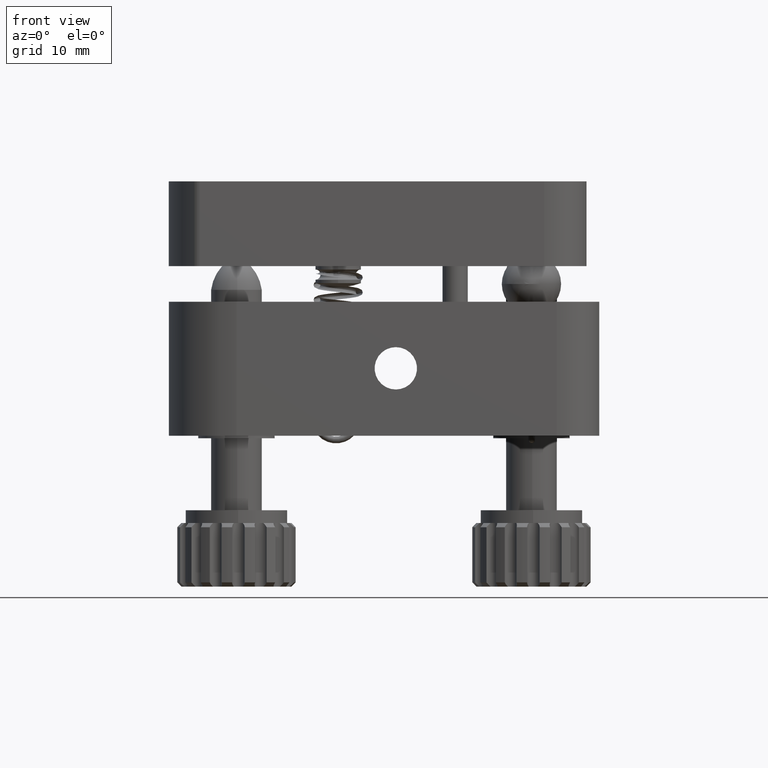
[diagram: clean part render]
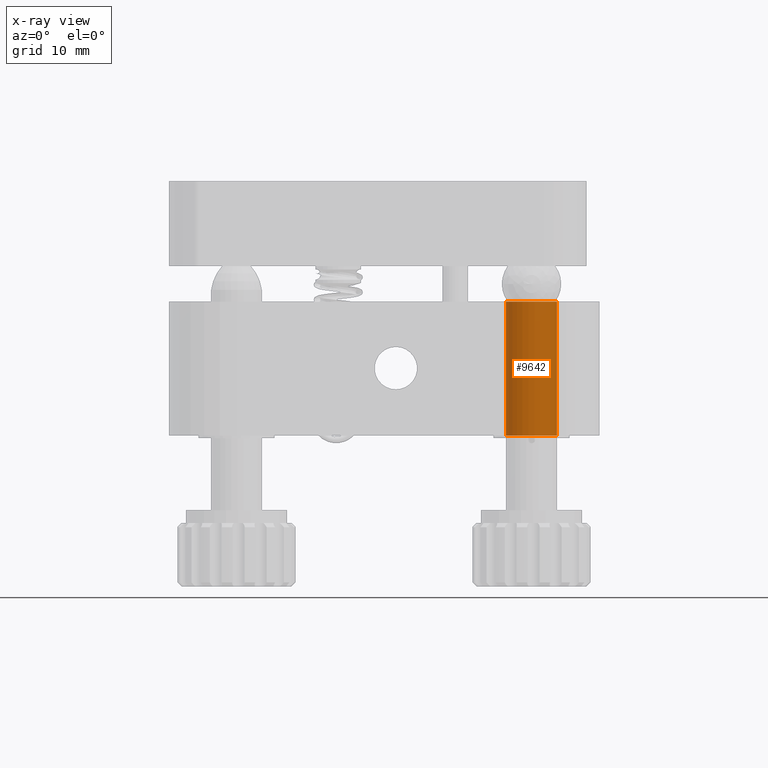
[diagram: x-ray — body ghosted, one internal face saturated and labeled with its STEP entity id]
A machine part, front view, then the same camera in x-ray: the body is ghosted and one INTERNAL B-rep face — a face not visible from any outside direction — is saturated and labeled: STEP entity #9642.
In plain terms, the highlighted cylindrical surface (edge-blend (fillet) strip) has radius 3 mm, axis along (-0, -0, -1).
Its self-contained STEP definition (entity closure, byte-faithful):
#651 = EDGE_CURVE ( 'NONE', #8964, #14265, #3020, .T. ) ;
#1569 = CIRCLE ( 'NONE', #19860, 2.999999999999999100 ) ;
#1683 = DIRECTION ( 'NONE',  ( -1.000000000000000000, 0.0000000000000000000, 0.0000000000000000000 ) ) ;
#2143 = VECTOR ( 'NONE', #2932, 1000.000000000000000 ) ;
#2172 = VERTEX_POINT ( 'NONE', #22550 ) ;
#2932 = DIRECTION ( 'NONE',  ( -0.0000000000000000000, -0.0000000000000000000, -1.000000000000000000 ) ) ;
#3020 = LINE ( 'NONE', #19733, #2143 ) ;
#3400 = ORIENTED_EDGE ( 'NONE', *, *, #12553, .F. ) ;
#4584 = LINE ( 'NONE', #28914, #32543 ) ;
#5513 = DIRECTION ( 'NONE',  ( 0.0000000000000000000, 0.0000000000000000000, -1.000000000000000000 ) ) ;
#7149 = DIRECTION ( 'NONE',  ( -0.0000000000000000000, -0.0000000000000000000, -1.000000000000000000 ) ) ;
#7497 = DIRECTION ( 'NONE',  ( 0.0000000000000000000, 0.0000000000000000000, -1.000000000000000000 ) ) ;
#8032 = ORIENTED_EDGE ( 'NONE', *, *, #9176, .T. ) ;
#8802 = EDGE_CURVE ( 'NONE', #2172, #14265, #1569, .T. ) ;
#8887 = CARTESIAN_POINT ( 'NONE',  ( -11.00000000000000000, 42.79999999999999700, 15.80000000000000100 ) ) ;
#8964 = VERTEX_POINT ( 'NONE', #8887 ) ;
#9176 = EDGE_CURVE ( 'NONE', #22881, #2172, #4584, .T. ) ;
#9642 = ADVANCED_FACE ( 'NONE', ( #23279 ), #20621, .F. ) ;
#9826 = ORIENTED_EDGE ( 'NONE', *, *, #8802, .T. ) ;
#12519 = ORIENTED_EDGE ( 'NONE', *, *, #651, .F. ) ;
#12553 = EDGE_CURVE ( 'NONE', #22881, #8964, #36296, .T. ) ;
#13622 = EDGE_LOOP ( 'NONE', ( #3400, #8032, #9826, #12519 ) ) ;
#14265 = VERTEX_POINT ( 'NONE', #21072 ) ;
#18285 = AXIS2_PLACEMENT_3D ( 'NONE', #18379, #7149, #1683 ) ;
#18379 = CARTESIAN_POINT ( 'NONE',  ( -8.000000000000000000, 42.79999999999999700, 15.80000000000000100 ) ) ;
#19733 = CARTESIAN_POINT ( 'NONE',  ( -11.00000000000000000, 42.79999999999999700, 15.80000000000000100 ) ) ;
#19860 = AXIS2_PLACEMENT_3D ( 'NONE', #22224, #5513, #25028 ) ;
#20621 = CYLINDRICAL_SURFACE ( 'NONE', #18285, 2.999999999999999100 ) ;
#20644 = CARTESIAN_POINT ( 'NONE',  ( -5.000000000000000000, 42.79999999999999700, 15.80000000000000100 ) ) ;
#21072 = CARTESIAN_POINT ( 'NONE',  ( -11.00000000000000000, 42.79999999999999700, 0.0000000000000000000 ) ) ;
#22224 = CARTESIAN_POINT ( 'NONE',  ( -8.000000000000000000, 42.79999999999999700, 0.0000000000000000000 ) ) ;
#22550 = CARTESIAN_POINT ( 'NONE',  ( -5.000000000000000000, 42.79999999999999700, 0.0000000000000000000 ) ) ;
#22881 = VERTEX_POINT ( 'NONE', #20644 ) ;
#23279 = FACE_OUTER_BOUND ( 'NONE', #13622, .T. ) ;
#24258 = CARTESIAN_POINT ( 'NONE',  ( -8.000000000000000000, 42.79999999999999700, 15.80000000000000100 ) ) ;
#25028 = DIRECTION ( 'NONE',  ( -1.000000000000000000, 0.0000000000000000000, 0.0000000000000000000 ) ) ;
#27057 = DIRECTION ( 'NONE',  ( -1.000000000000000000, 0.0000000000000000000, 0.0000000000000000000 ) ) ;
#28914 = CARTESIAN_POINT ( 'NONE',  ( -5.000000000000000000, 42.79999999999999700, 15.80000000000000100 ) ) ;
#30826 = AXIS2_PLACEMENT_3D ( 'NONE', #24258, #7497, #27057 ) ;
#32543 = VECTOR ( 'NONE', #34691, 1000.000000000000000 ) ;
#34691 = DIRECTION ( 'NONE',  ( -0.0000000000000000000, -0.0000000000000000000, -1.000000000000000000 ) ) ;
#36296 = CIRCLE ( 'NONE', #30826, 2.999999999999999100 ) ;